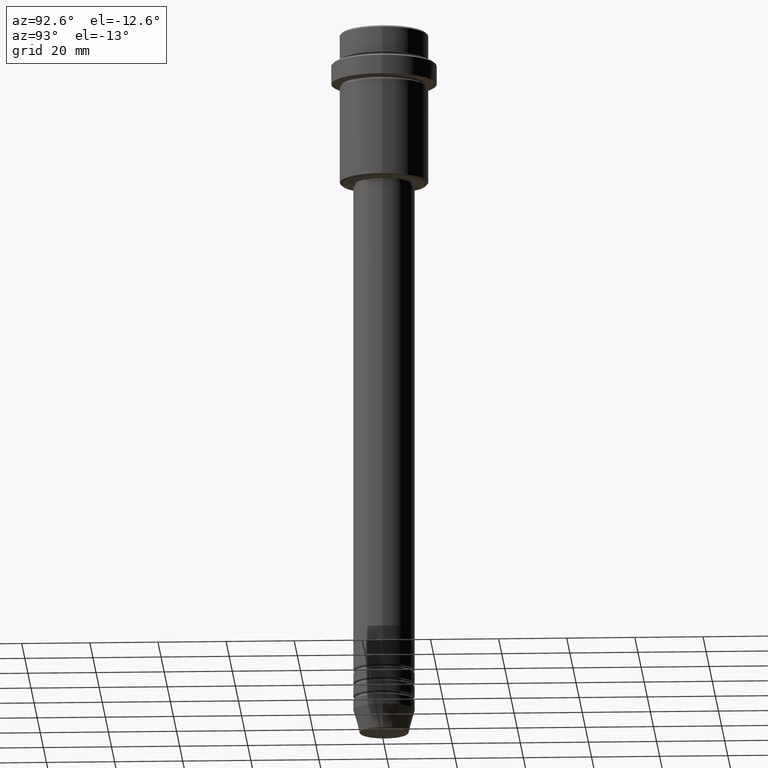
[diagram: clean part render]
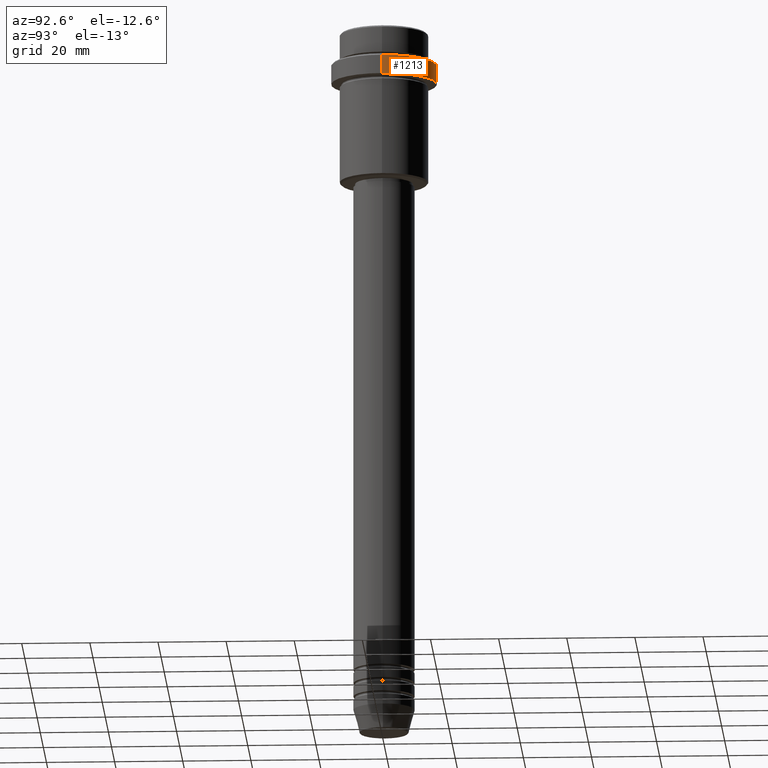
[diagram: same view with one face highlighted and labeled with its STEP entity id]
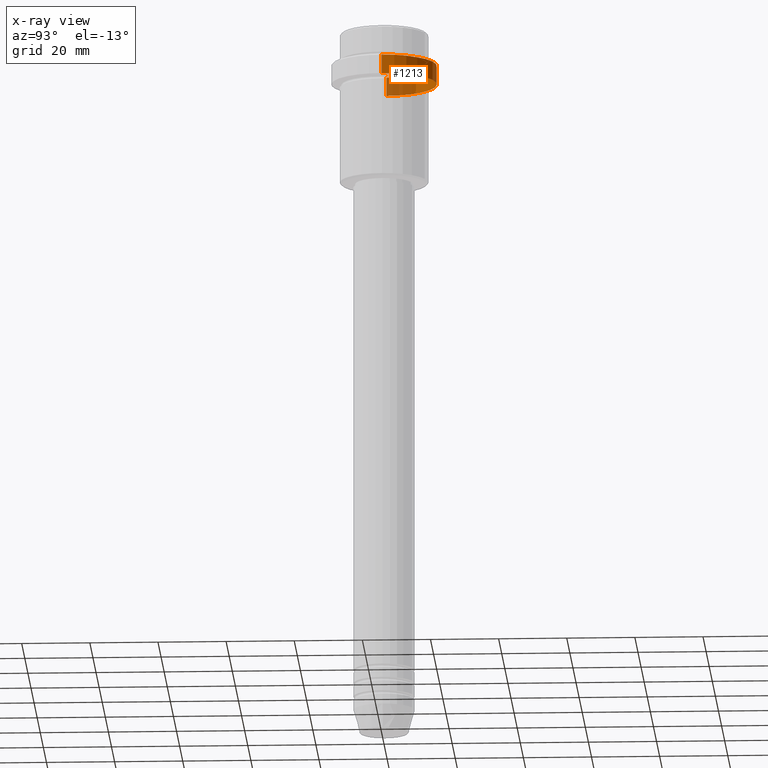
[diagram: x-ray of the same camera — body ghosted, the highlighted face saturated]
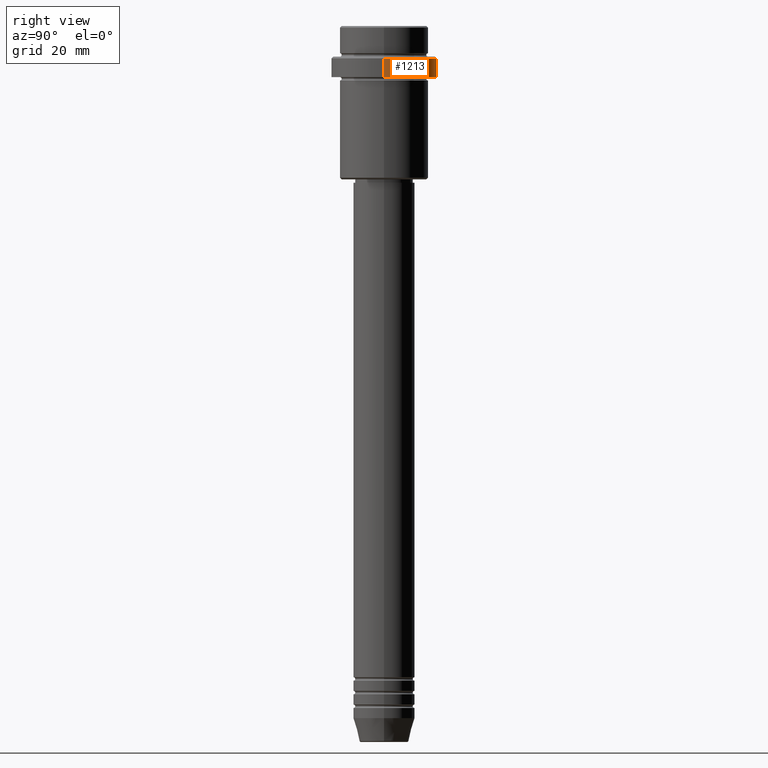
[diagram: same view with one face highlighted and labeled with its STEP entity id]
A machine part, auxiliary view. The second image highlights one B-rep face of the part: STEP entity #1213.
The next image is the same camera in x-ray: the body ghosted, the highlighted face saturated — about 30% of this face is hidden behind the body in this view.
A second angle (right view) of the same face is appended — the face is thin or edge-on in the first view.
In plain terms, the highlighted cylindrical surface (partial cylindrical patch) has radius 15.5 mm, axis along (-0, -0, 1).
Its self-contained STEP definition (entity closure, byte-faithful):
#16 = EDGE_CURVE ( 'NONE', #244, #784, #830, .T. ) ;
#43 = FACE_OUTER_BOUND ( 'NONE', #1066, .T. ) ;
#61 = DIRECTION ( 'NONE',  ( -0.000000000000000000, -0.000000000000000000, 1.000000000000000000 ) ) ;
#109 = DIRECTION ( 'NONE',  ( -0.000000000000000000, -0.000000000000000000, 1.000000000000000000 ) ) ;
#111 = VERTEX_POINT ( 'NONE', #358 ) ;
#186 = VERTEX_POINT ( 'NONE', #1060 ) ;
#244 = VERTEX_POINT ( 'NONE', #941 ) ;
#281 = VECTOR ( 'NONE', #109, 1000.000000000000000 ) ;
#284 = VECTOR ( 'NONE', #324, 1000.000000000000000 ) ;
#294 = CYLINDRICAL_SURFACE ( 'NONE', #975, 15.50000000000000000 ) ;
#318 = CARTESIAN_POINT ( 'NONE',  ( 15.50000000000000000, 0.000000000000000000, 0.000000000000000000 ) ) ;
#324 = DIRECTION ( 'NONE',  ( -0.000000000000000000, -0.000000000000000000, 1.000000000000000000 ) ) ;
#358 = CARTESIAN_POINT ( 'NONE',  ( -15.50000000000000000, 1.898202538678397557E-15, -15.00000000000000000 ) ) ;
#407 = ORIENTED_EDGE ( 'NONE', *, *, #16, .T. ) ;
#493 = CARTESIAN_POINT ( 'NONE',  ( 0.000000000000000000, 0.000000000000000000, -15.00000000000000000 ) ) ;
#514 = ORIENTED_EDGE ( 'NONE', *, *, #1084, .T. ) ;
#533 = LINE ( 'NONE', #318, #284 ) ;
#571 = ORIENTED_EDGE ( 'NONE', *, *, #1346, .F. ) ;
#583 = ORIENTED_EDGE ( 'NONE', *, *, #875, .T. ) ;
#659 = DIRECTION ( 'NONE',  ( 0.000000000000000000, 0.000000000000000000, -1.000000000000000000 ) ) ;
#696 = AXIS2_PLACEMENT_3D ( 'NONE', #757, #659, #1392 ) ;
#757 = CARTESIAN_POINT ( 'NONE',  ( 0.000000000000000000, 0.000000000000000000, -9.500000000000012434 ) ) ;
#784 = VERTEX_POINT ( 'NONE', #986 ) ;
#830 = CIRCLE ( 'NONE', #696, 15.50000000000000000 ) ;
#855 = LINE ( 'NONE', #1405, #281 ) ;
#875 = EDGE_CURVE ( 'NONE', #111, #244, #855, .T. ) ;
#876 = DIRECTION ( 'NONE',  ( -0.000000000000000000, -0.000000000000000000, 1.000000000000000000 ) ) ;
#920 = DIRECTION ( 'NONE',  ( 1.000000000000000000, 0.000000000000000000, 0.000000000000000000 ) ) ;
#941 = CARTESIAN_POINT ( 'NONE',  ( -15.50000000000000000, 1.898202538678397557E-15, -9.500000000000012434 ) ) ;
#975 = AXIS2_PLACEMENT_3D ( 'NONE', #1280, #876, #1195 ) ;
#986 = CARTESIAN_POINT ( 'NONE',  ( 15.50000000000000000, 0.000000000000000000, -9.500000000000012434 ) ) ;
#1060 = CARTESIAN_POINT ( 'NONE',  ( 15.50000000000000000, 0.000000000000000000, -15.00000000000000000 ) ) ;
#1066 = EDGE_LOOP ( 'NONE', ( #514, #583, #407, #571 ) ) ;
#1084 = EDGE_CURVE ( 'NONE', #186, #111, #1311, .T. ) ;
#1195 = DIRECTION ( 'NONE',  ( 1.000000000000000000, 0.000000000000000000, 0.000000000000000000 ) ) ;
#1213 = ADVANCED_FACE ( 'NONE', ( #43 ), #294, .T. ) ;
#1226 = AXIS2_PLACEMENT_3D ( 'NONE', #493, #61, #920 ) ;
#1280 = CARTESIAN_POINT ( 'NONE',  ( 0.000000000000000000, 0.000000000000000000, 0.000000000000000000 ) ) ;
#1311 = CIRCLE ( 'NONE', #1226, 15.50000000000000000 ) ;
#1346 = EDGE_CURVE ( 'NONE', #186, #784, #533, .T. ) ;
#1392 = DIRECTION ( 'NONE',  ( 1.000000000000000000, 0.000000000000000000, 0.000000000000000000 ) ) ;
#1405 = CARTESIAN_POINT ( 'NONE',  ( -15.50000000000000000, 1.898202538678397557E-15, 0.000000000000000000 ) ) ;